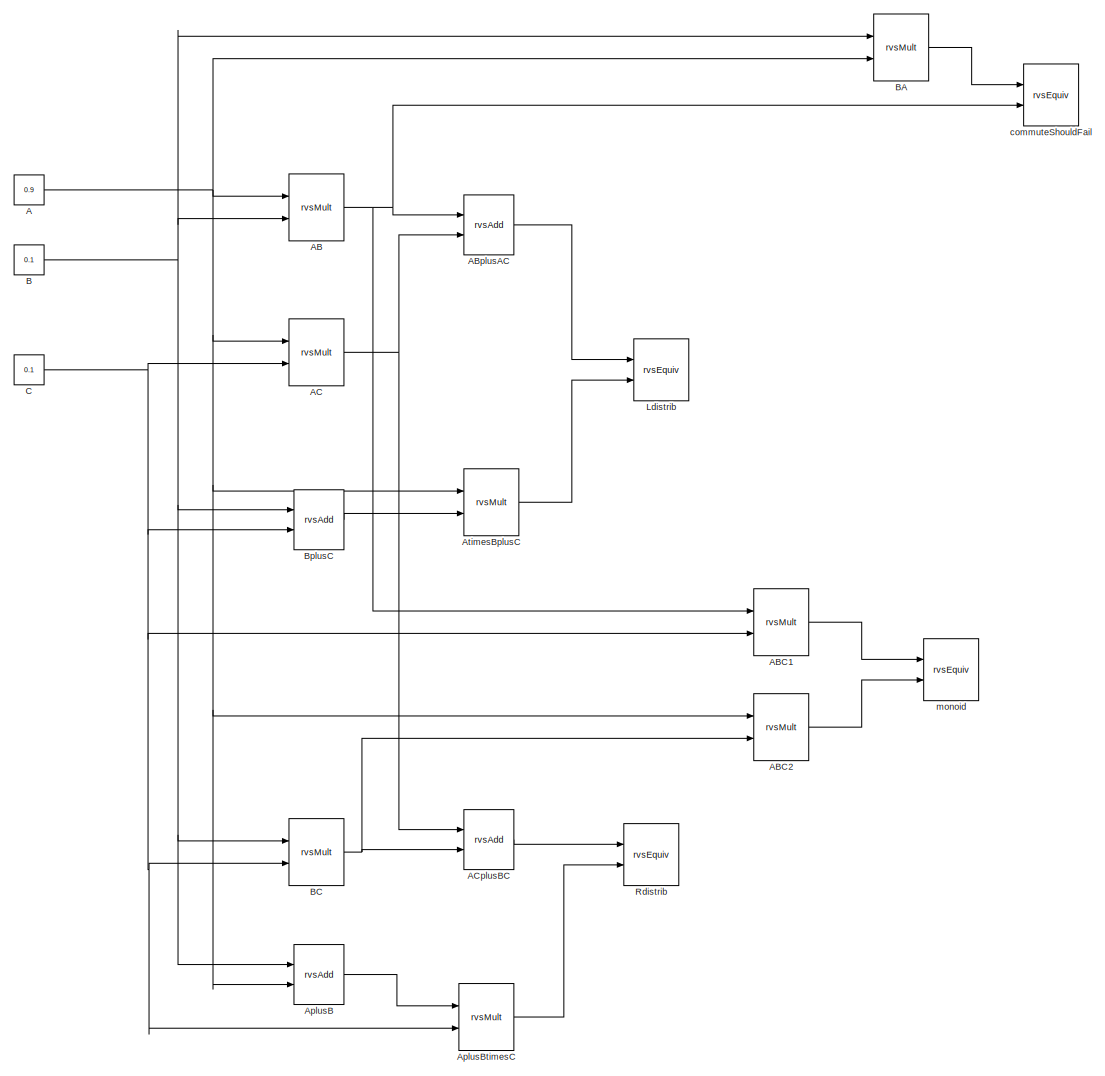
[diagram: root canvas - part 1/1, most of the canvas]
MODEL slx_48729eb5b17e
KIND model
CONFIG AbsTol = auto
CONFIG FixedStep = auto
CONFIG MaxStep = auto
CONFIG MinStep = auto
CONFIG RelTol = 1e-3
CONFIG SampleTimeConstraint = Unconstrained
CONFIG Solver = FixedStepDiscrete
CONFIG SolverMode = Auto
CONFIG SolverName = FixedStepDiscrete
CONFIG StartTime = 0.0
CONFIG StopTime = 10.0
BLOCK [Constant] A
  Value = 0.9
BLOCK [Reference] AB  REF=rvs/rvsMult  (lib defined in slx_4df59143a37a)
  Ports = [2, 1]
  SourceBlock = rvs/rvsMult
  SourceType = rvsMult
BLOCK [Reference] ABC1  REF=rvs/rvsMult  (lib defined in slx_4df59143a37a)
  Ports = [2, 1]
  SourceBlock = rvs/rvsMult
  SourceType = rvsMult
BLOCK [Reference] ABC2  REF=rvs/rvsMult  (lib defined in slx_4df59143a37a)
  Ports = [2, 1]
  SourceBlock = rvs/rvsMult
  SourceType = rvsMult
BLOCK [Reference] ABplusAC  REF=rvs/rvsAdd  (lib defined in slx_4df59143a37a)
  Ports = [2, 1]
  SourceBlock = rvs/rvsAdd
  SourceType = rvsAdd
BLOCK [Reference] AC  REF=rvs/rvsMult  (lib defined in slx_4df59143a37a)
  Ports = [2, 1]
  SourceBlock = rvs/rvsMult
  SourceType = rvsMult
BLOCK [Reference] ACplusBC  REF=rvs/rvsAdd  (lib defined in slx_4df59143a37a)
  Ports = [2, 1]
  SourceBlock = rvs/rvsAdd
  SourceType = rvsAdd
BLOCK [Reference] AplusB  REF=rvs/rvsAdd  (lib defined in slx_4df59143a37a)
  Ports = [2, 1]
  SourceBlock = rvs/rvsAdd
  SourceType = rvsAdd
BLOCK [Reference] AplusBtimesC  REF=rvs/rvsMult  (lib defined in slx_4df59143a37a)
  Ports = [2, 1]
  SourceBlock = rvs/rvsMult
  SourceType = rvsMult
BLOCK [Reference] AtimesBplusC  REF=rvs/rvsMult  (lib defined in slx_4df59143a37a)
  Ports = [2, 1]
  SourceBlock = rvs/rvsMult
  SourceType = rvsMult
BLOCK [Constant] B
  Value = 0.1
BLOCK [Reference] BA  REF=rvs/rvsMult  (lib defined in slx_4df59143a37a)
  Ports = [2, 1]
  SourceBlock = rvs/rvsMult
  SourceType = rvsMult
BLOCK [Reference] BC  REF=rvs/rvsMult  (lib defined in slx_4df59143a37a)
  Ports = [2, 1]
  SourceBlock = rvs/rvsMult
  SourceType = rvsMult
BLOCK [Reference] BplusC  REF=rvs/rvsAdd  (lib defined in slx_4df59143a37a)
  Ports = [2, 1]
  SourceBlock = rvs/rvsAdd
  SourceType = rvsAdd
BLOCK [Constant] C
  Value = 0.1
BLOCK [Reference] Ldistrib  REF=rvs/rvsEquiv  (lib defined in slx_4df59143a37a)
  Ports = [2]
  SourceBlock = rvs/rvsEquiv
  SourceType = rvsEquiv
BLOCK [Reference] Rdistrib  REF=rvs/rvsEquiv  (lib defined in slx_4df59143a37a)
  Ports = [2]
  SourceBlock = rvs/rvsEquiv
  SourceType = rvsEquiv
BLOCK [Reference] commuteShouldFail  REF=rvs/rvsEquiv  (lib defined in slx_4df59143a37a)
  Ports = [2]
  SourceBlock = rvs/rvsEquiv
  SourceType = rvsEquiv
BLOCK [Reference] monoid  REF=rvs/rvsEquiv  (lib defined in slx_4df59143a37a)
  Ports = [2]
  SourceBlock = rvs/rvsEquiv
  SourceType = rvsEquiv
NET A:1 -> AB:1, ABC2:1, AC:1, AplusB:2, AtimesBplusC:1, BA:2
NET AB:1 -> ABC1:1, ABplusAC:1, commuteShouldFail:2
LINE ABC1:1 -> monoid:1
LINE ABC2:1 -> monoid:2
LINE ABplusAC:1 -> Ldistrib:1
NET AC:1 -> ABplusAC:2, ACplusBC:1
LINE ACplusBC:1 -> Rdistrib:1
LINE AplusB:1 -> AplusBtimesC:1
LINE AplusBtimesC:1 -> Rdistrib:2
LINE AtimesBplusC:1 -> Ldistrib:2
NET B:1 -> AB:2, AplusB:1, BA:1, BC:1, BplusC:1
LINE BA:1 -> commuteShouldFail:1
NET BC:1 -> ABC2:2, ACplusBC:2
LINE BplusC:1 -> AtimesBplusC:2
NET C:1 -> ABC1:2, AC:2, AplusBtimesC:2, BC:2, BplusC:2
note: NET lines group one-source signal fan-out (src -> all destinations, sorted); 1:1 wires keep LINE
